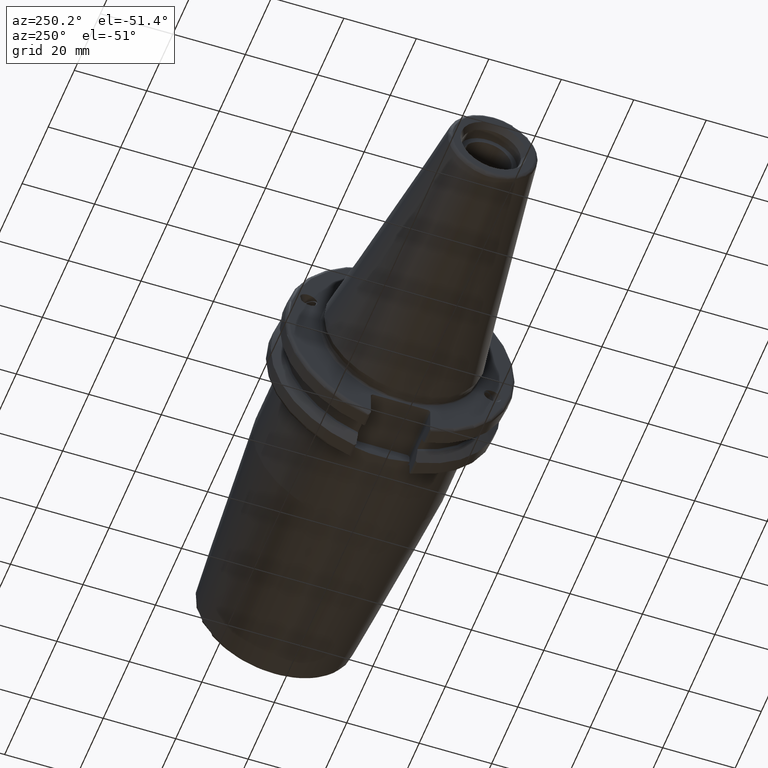
[diagram: clean part render]
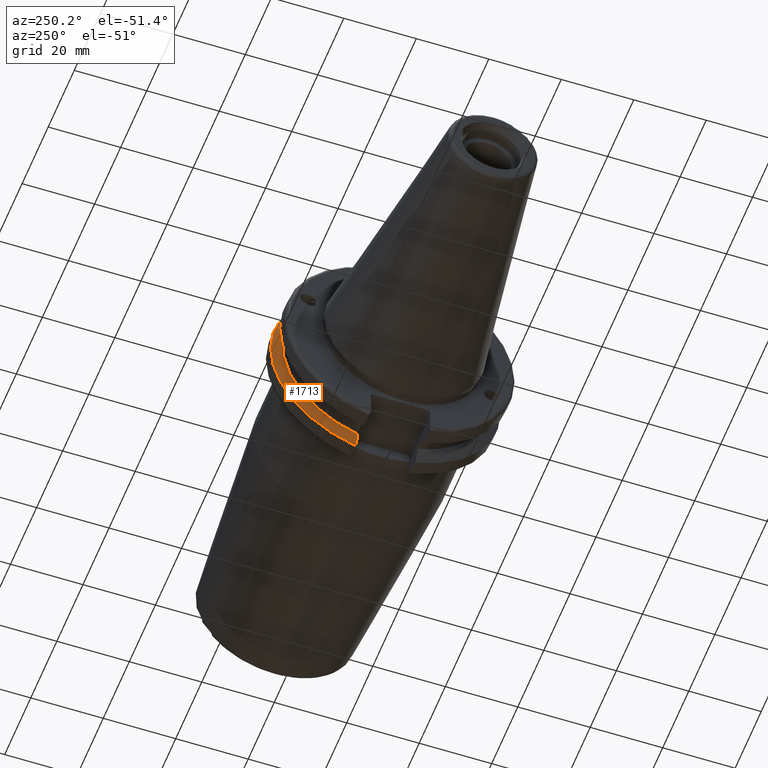
[diagram: same view with one face highlighted and labeled with its STEP entity id]
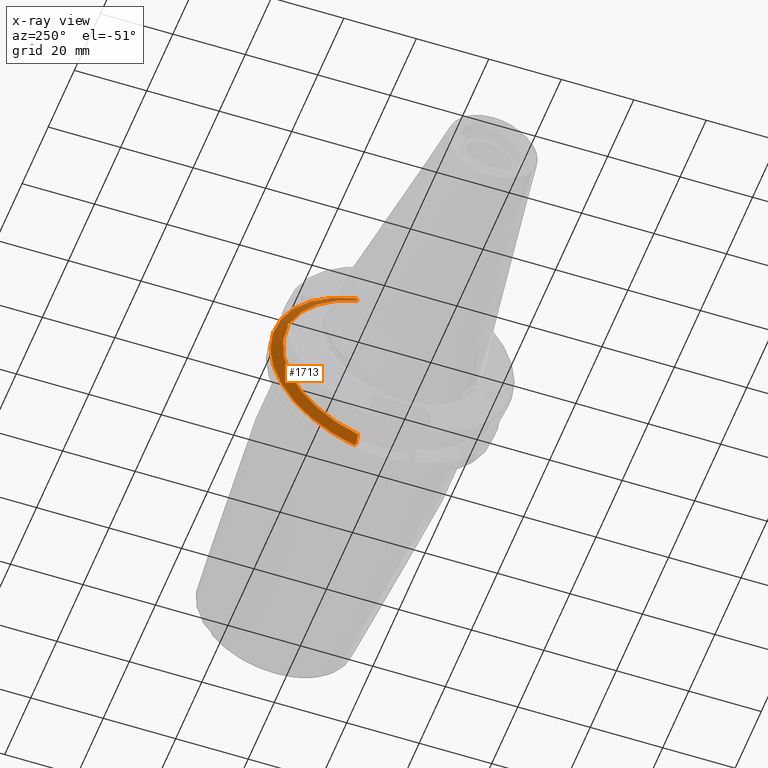
[diagram: x-ray of the same camera — body ghosted, the highlighted face saturated]
A machine part, auxiliary view. The second image highlights one B-rep face of the part: STEP entity #1713.
The next image is the same camera in x-ray: the body ghosted, the highlighted face saturated — about 3% of this face is hidden behind the body in this view.
In plain terms, the highlighted conical surface has half-angle 60 deg.
Its self-contained STEP definition (entity closure, byte-faithful):
#23=(
BOUNDED_CURVE()
B_SPLINE_CURVE(2,(#3068,#3069,#3070),.UNSPECIFIED.,.F.,.F.)
B_SPLINE_CURVE_WITH_KNOTS((3,3),(0.329353533631226,0.393258405001025),
 .UNSPECIFIED.)
CURVE()
GEOMETRIC_REPRESENTATION_ITEM()
RATIONAL_B_SPLINE_CURVE((1.00047644010577,1.00028444218285,1.))
REPRESENTATION_ITEM('')
);
#24=(
BOUNDED_CURVE()
B_SPLINE_CURVE(2,(#3082,#3083,#3084),.UNSPECIFIED.,.F.,.F.)
B_SPLINE_CURVE_WITH_KNOTS((3,3),(0.0550586467393769,0.331607789535852),
 .UNSPECIFIED.)
CURVE()
GEOMETRIC_REPRESENTATION_ITEM()
RATIONAL_B_SPLINE_CURVE((1.00031614444922,1.00095203903643,1.))
REPRESENTATION_ITEM('')
);
#29=(
BOUNDED_CURVE()
B_SPLINE_CURVE(2,(#3247,#3248,#3249),.UNSPECIFIED.,.F.,.F.)
B_SPLINE_CURVE_WITH_KNOTS((3,3),(0.,0.276549142795274),.UNSPECIFIED.)
CURVE()
GEOMETRIC_REPRESENTATION_ITEM()
RATIONAL_B_SPLINE_CURVE((1.,1.00095203903599,1.00031614444907))
REPRESENTATION_ITEM('')
);
#30=(
BOUNDED_CURVE()
B_SPLINE_CURVE(2,(#3264,#3265,#3266),.UNSPECIFIED.,.F.,.F.)
B_SPLINE_CURVE_WITH_KNOTS((3,3),(0.,0.0639048713675655),.UNSPECIFIED.)
CURVE()
GEOMETRIC_REPRESENTATION_ITEM()
RATIONAL_B_SPLINE_CURVE((1.,1.00028444218286,1.00047644010578))
REPRESENTATION_ITEM('')
);
#46=B_SPLINE_CURVE_WITH_KNOTS('',3,(#2866,#2867,#2868,#2869,#2870,#2871,
#2872,#2873),.UNSPECIFIED.,.F.,.F.,(4,2,2,4),(0.451995700189023,0.464547828547662,
0.504528771685167,0.544509714822673),.UNSPECIFIED.);
#50=B_SPLINE_CURVE_WITH_KNOTS('',3,(#2928,#2929,#2930,#2931,#2932,#2933,
#2934,#2935),.UNSPECIFIED.,.F.,.F.,(4,2,2,4),(0.544509714822673,0.584490657960178,
0.624471601097683,0.637023729456323),.UNSPECIFIED.);
#76=CONICAL_SURFACE('',#1929,30.3546886482472,1.0471975511966);
#480=FACE_OUTER_BOUND('',#591,.T.);
#591=EDGE_LOOP('',(#1569,#1570,#1571,#1572,#1573,#1574,#1575,#1576,#1577));
#650=CIRCLE('',#1856,28.9593772964944);
#673=CIRCLE('',#1915,31.75);
#680=CIRCLE('',#1930,28.9593772964944);
#772=VERTEX_POINT('',#2863);
#773=VERTEX_POINT('',#2865);
#780=VERTEX_POINT('',#2926);
#789=VERTEX_POINT('',#2968);
#816=VERTEX_POINT('',#3065);
#817=VERTEX_POINT('',#3067);
#842=VERTEX_POINT('',#3244);
#843=VERTEX_POINT('',#3246);
#846=VERTEX_POINT('',#3262);
#975=EDGE_CURVE('',#773,#772,#46,.T.);
#983=EDGE_CURVE('',#772,#780,#50,.T.);
#995=EDGE_CURVE('',#789,#773,#650,.T.);
#1031=EDGE_CURVE('',#816,#817,#23,.T.);
#1036=EDGE_CURVE('',#816,#789,#24,.T.);
#1081=EDGE_CURVE('',#843,#842,#29,.T.);
#1089=EDGE_CURVE('',#846,#842,#30,.T.);
#1090=EDGE_CURVE('',#817,#846,#673,.T.);
#1100=EDGE_CURVE('',#780,#843,#680,.T.);
#1569=ORIENTED_EDGE('',*,*,#975,.T.);
#1570=ORIENTED_EDGE('',*,*,#983,.T.);
#1571=ORIENTED_EDGE('',*,*,#1100,.T.);
#1572=ORIENTED_EDGE('',*,*,#1081,.T.);
#1573=ORIENTED_EDGE('',*,*,#1089,.F.);
#1574=ORIENTED_EDGE('',*,*,#1090,.F.);
#1575=ORIENTED_EDGE('',*,*,#1031,.F.);
#1576=ORIENTED_EDGE('',*,*,#1036,.T.);
#1577=ORIENTED_EDGE('',*,*,#995,.T.);
#1713=ADVANCED_FACE('',(#480),#76,.T.);
#1856=AXIS2_PLACEMENT_3D('',#2969,#2214,#2215);
#1915=AXIS2_PLACEMENT_3D('',#3268,#2379,#2380);
#1929=AXIS2_PLACEMENT_3D('',#3288,#2410,#2411);
#1930=AXIS2_PLACEMENT_3D('',#3289,#2412,#2413);
#2214=DIRECTION('center_axis',(1.,0.,0.));
#2215=DIRECTION('ref_axis',(0.,0.,-1.));
#2379=DIRECTION('center_axis',(1.,0.,0.));
#2380=DIRECTION('ref_axis',(0.,0.,-1.));
#2410=DIRECTION('center_axis',(1.,0.,0.));
#2411=DIRECTION('ref_axis',(0.,1.,0.));
#2412=DIRECTION('center_axis',(1.,0.,0.));
#2413=DIRECTION('ref_axis',(0.,0.,-1.));
#2863=CARTESIAN_POINT('',(13.2341,27.51401829017,10.0142836826778));
#2865=CARTESIAN_POINT('',(13.0491,27.4956274489925,9.09043478536244));
#2866=CARTESIAN_POINT('Ctrl Pts',(13.0491,27.4956274489925,9.09043478536245));
#2867=CARTESIAN_POINT('Ctrl Pts',(13.0632204071996,27.5087667900418,9.12860597076217));
#2868=CARTESIAN_POINT('Ctrl Pts',(13.0766929817857,27.5206055003513,9.16696618806877));
#2869=CARTESIAN_POINT('Ctrl Pts',(13.130081441159,27.5642934663232,9.32791534028656));
#2870=CARTESIAN_POINT('Ctrl Pts',(13.1682197084175,27.5867382255984,9.46717946402648));
#2871=CARTESIAN_POINT('Ctrl Pts',(13.2204106446058,27.5847569104122,9.74771639360672));
#2872=CARTESIAN_POINT('Ctrl Pts',(13.2341,27.559599249844,9.8890510252165));
#2873=CARTESIAN_POINT('Ctrl Pts',(13.2341,27.51401829017,10.0142836826778));
#2926=CARTESIAN_POINT('',(13.0491,26.9060914640648,10.7101715919071));
#2928=CARTESIAN_POINT('Ctrl Pts',(13.2341,27.51401829017,10.0142836826778));
#2929=CARTESIAN_POINT('Ctrl Pts',(13.2341,27.4684373304961,10.139516340139));
#2930=CARTESIAN_POINT('Ctrl Pts',(13.2204106446058,27.3968610665578,10.2639559818059));
#2931=CARTESIAN_POINT('Ctrl Pts',(13.1682197084175,27.2180531796526,10.4801333026531));
#2932=CARTESIAN_POINT('Ctrl Pts',(13.130081441159,27.1113422433189,10.5723885976054));
#2933=CARTESIAN_POINT('Ctrl Pts',(13.0766929817857,26.9744191989197,10.6676007180674));
#2934=CARTESIAN_POINT('Ctrl Pts',(13.0632204071996,26.9406927482839,10.6893765730703));
#2935=CARTESIAN_POINT('Ctrl Pts',(13.0491,26.9060914640648,10.7101715919071));
#2968=CARTESIAN_POINT('',(13.0491,8.19,-27.7771386827498));
#2969=CARTESIAN_POINT('Origin',(13.0491,0.,0.));
#3065=CARTESIAN_POINT('',(14.3815146964874,8.19,-30.1755016258903));
#3067=CARTESIAN_POINT('',(14.6602667690756,8.67204822802685,-30.5427254764662));
#3068=CARTESIAN_POINT('Ctrl Pts',(14.3815146964874,8.19,-30.1755016258903));
#3069=CARTESIAN_POINT('Ctrl Pts',(14.5192085187884,8.42917748263464,-30.3577067892692));
#3070=CARTESIAN_POINT('Ctrl Pts',(14.6602667690756,8.67204822802686,-30.5427254764662));
#3082=CARTESIAN_POINT('Ctrl Pts',(14.3815146964874,8.18999999999999,-30.1755016258903));
#3083=CARTESIAN_POINT('Ctrl Pts',(13.687736438474,8.19,-28.9303689539668));
#3084=CARTESIAN_POINT('Ctrl Pts',(13.0491,8.19,-27.7771386827498));
#3244=CARTESIAN_POINT('',(14.3815146964874,8.19,30.1755016258903));
#3246=CARTESIAN_POINT('',(13.0491,8.19,27.7771386827498));
#3247=CARTESIAN_POINT('Ctrl Pts',(13.0491,8.19,27.7771386827498));
#3248=CARTESIAN_POINT('Ctrl Pts',(13.687736438489,8.19,28.9303689539938));
#3249=CARTESIAN_POINT('Ctrl Pts',(14.3815146964874,8.19,30.1755016258903));
#3262=CARTESIAN_POINT('',(14.6602667690756,8.67204822802685,30.5427254764662));
#3264=CARTESIAN_POINT('Ctrl Pts',(14.6602667690756,8.67204822802687,30.5427254764662));
#3265=CARTESIAN_POINT('Ctrl Pts',(14.5192085187837,8.42917748262644,30.357706789263));
#3266=CARTESIAN_POINT('Ctrl Pts',(14.3815146964874,8.19,30.1755016258903));
#3268=CARTESIAN_POINT('Origin',(14.6602667690756,0.,0.));
#3288=CARTESIAN_POINT('Origin',(13.8546833845378,0.,0.));
#3289=CARTESIAN_POINT('Origin',(13.0491,0.,0.));